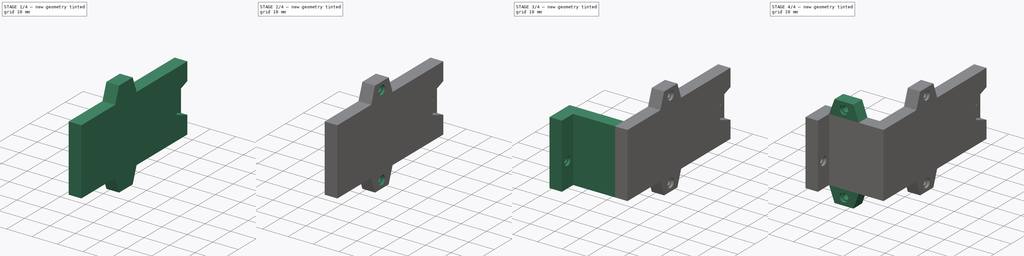
[diagram: build sequence overview — one tinted view per stage of 4, left to right]
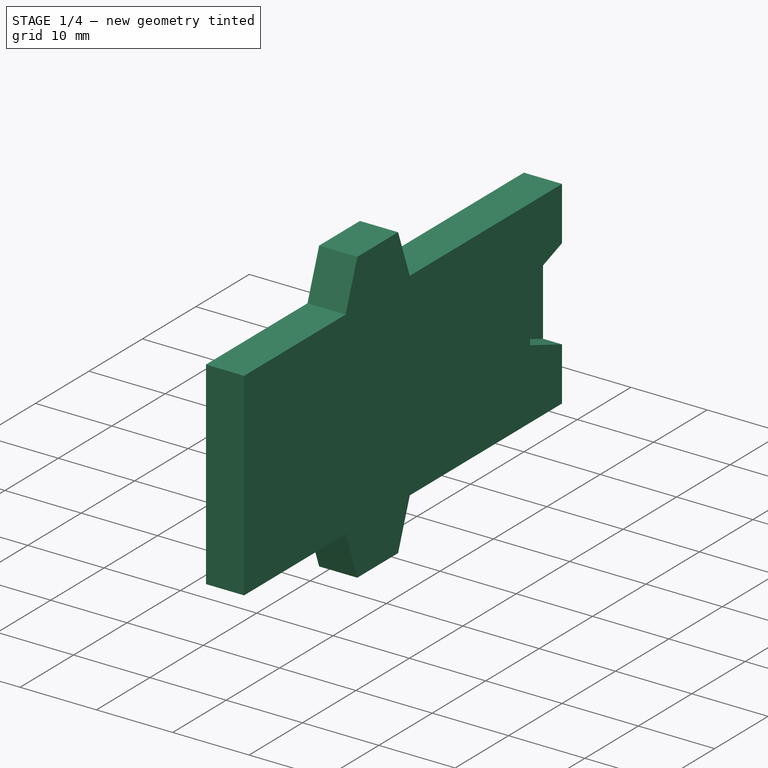
[diagram: stage 1 of 4 — iso view after this stage's code; geometry added in this stage tinted green]
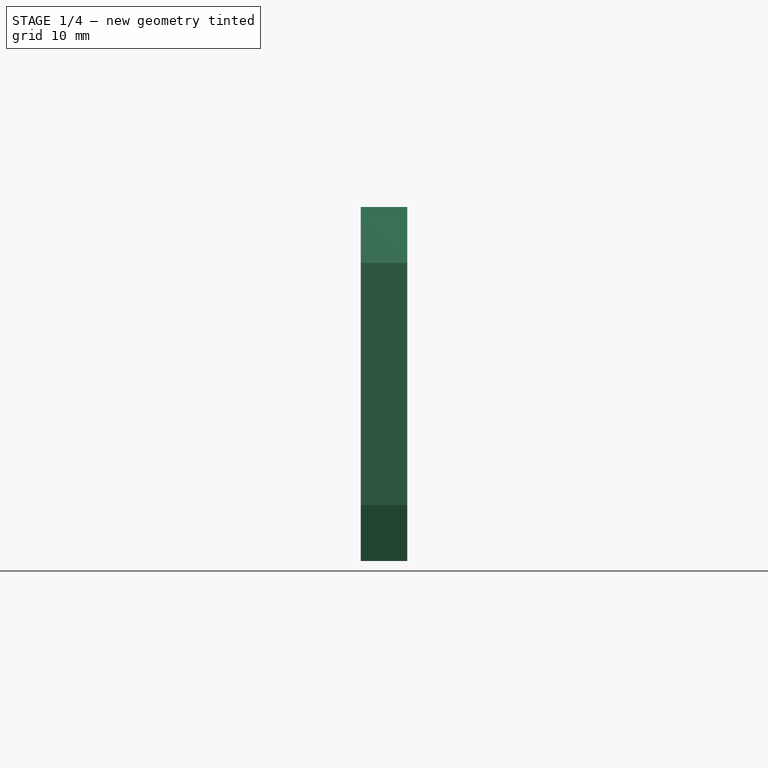
[diagram: stage 1 of 4 — front view after this stage's code; geometry added in this stage tinted green]
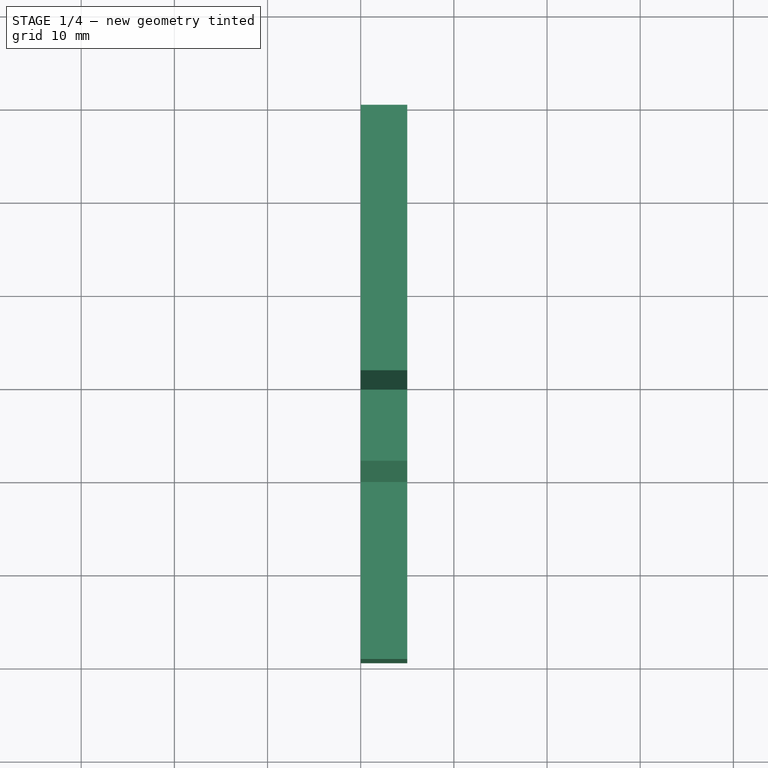
[diagram: stage 1 of 4 — top view after this stage's code; geometry added in this stage tinted green]
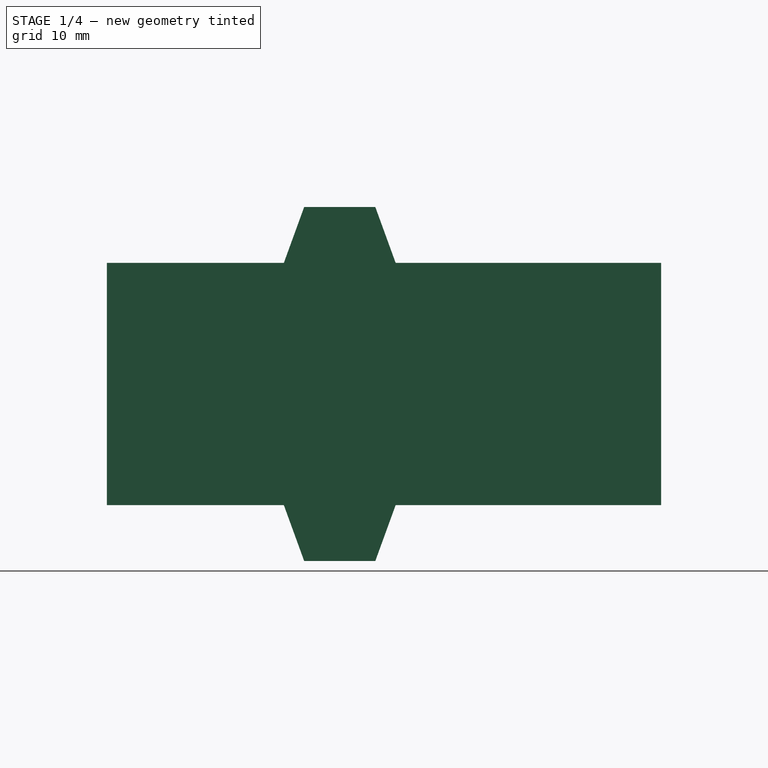
[diagram: stage 1 of 4 — right view after this stage's code; geometry added in this stage tinted green]
FCSTD DOCUMENT  (FreeCAD 0.22R38334 (Git))
Label: CH004
License: All rights reserved
LicenseURL: http://en.wikipedia.org/wiki/All_rights_reserved
objects: Sketcher::SketchObject×10, PartDesign::Pad×4, PartDesign::Body×3, PartDesign::Hole×3, PartDesign::SubShapeBinder×2, PartDesign::Pocket×2, App::Part×1
note: 52 computed .brp shape members not serialized (recipe doc carries the construction recipe); baked Part::Feature solids carry a one-line shape summary decoded from their .brp

FEATURE [PartDesign::SubShapeBinder] Binder
  BindCopyOnChange = 0
  BindMode = 0
  ClaimChildren = false
  Context = -> Part004 [Body.Binder.]
  Fuse = false
  MakeFace = true
  OffsetFill = false
  OffsetIntersection = false
  OffsetJoinType = 0
  OffsetOpenResult = false
  PartialLoad = false
  Relative = true
  Support = -> [Body016[Sketch033.]]
  _Version = 2
FEATURE [PartDesign::SubShapeBinder] Binder001
  BindCopyOnChange = 0
  BindMode = 0
  ClaimChildren = false
  Context = -> Part004 [Body017.Binder001.]
  Fuse = false
  MakeFace = true
  OffsetFill = false
  OffsetIntersection = false
  OffsetJoinType = 0
  OffsetOpenResult = false
  PartialLoad = false
  Relative = true
  Support = -> [Body016[Sketch033.]]
  _Version = 2
FEATURE [Sketcher::SketchObject] Sketch
  AttachmentSupport = -> [YZ_Plane]
  ExternalGeometry = -> [Binder]
  FullyConstrained = true
  MakeInternals = false
  MapMode = 5
  Placement = pos=(0,0,0) rot=(0.57735,0.57735,0.57735;2.0944rad)
  sketch-geometry (13):
    g0: LineSegment StartX=-59.5 StartY=13 StartZ=0 EndX=-59.5 EndY=-13 EndZ=0
    g1: LineSegment StartX=-59.5 StartY=-13 StartZ=0 EndX=-40.5 EndY=-13 EndZ=0
    g2: LineSegment StartX=0 StartY=13 StartZ=0 EndX=-28.5 EndY=13 EndZ=0
    g3: LineSegment StartX=-40.5 StartY=13 StartZ=0 EndX=-38.3162 EndY=19 EndZ=0
    g4: LineSegment StartX=-38.3162 StartY=19 StartZ=0 EndX=-30.6838 EndY=19 EndZ=0
    g5: LineSegment StartX=-30.6838 StartY=19 StartZ=0 EndX=-28.5 EndY=13 EndZ=0
    g6: LineSegment StartX=-40.5 StartY=13 StartZ=0 EndX=-59.5 EndY=13 EndZ=0
    g7: LineSegment StartX=-40.5 StartY=-13 StartZ=0 EndX=-38.3162 EndY=-19 EndZ=0
    g8: LineSegment StartX=-38.3162 StartY=-19 StartZ=0 EndX=-30.6838 EndY=-19 EndZ=0
    g9: LineSegment StartX=-30.6838 StartY=-19 StartZ=0 EndX=-28.5 EndY=-13 EndZ=0
    g10: LineSegment StartX=-28.5 StartY=-13 StartZ=0 EndX=0 EndY=-13 EndZ=0
    g11: LineSegment StartX=-34.5 StartY=19 StartZ=0 EndX=-34.5 EndY=-19 EndZ=0
    g12: LineSegment StartX=0 StartY=-13 StartZ=0 EndX=0 EndY=13 EndZ=0
  constraints (37):
    c: Coincident(g0,g1)
    c: PointOnObject(g10,g-2)
    c: Horizontal(g1)
    c: PointOnObject(g2,g-2)
    c: Coincident(g6,g0)
    c: Horizontal(g2)
    c: Vertical(g0,g-3)
    c: PointOnObject(g3,g6)
    c: Coincident(g3,g4)
    c: Horizontal(g4)
    c: Coincident(g5,g4)
    c: Coincident(g2,g5)
    c: PointOnObject(g6,g3)
    c: DistanceX(g3,g2) = 12
    c: DistanceY(g3,g3) = 6
    c: Angle(g3,g4) = 1.91986
    c: Horizontal(g6)
    c: Coincident(g7,g8)
    c: Horizontal(g8)
    c: Coincident(g8,g9)
    c: PointOnObject(g9,g10)
    c: Coincident(g1,g7)
    c: PointOnObject(g10,g9)
    c: Vertical(g3,g1)
    c: Vertical(g9,g2)
    c: Symmetric(g4,g4,g11)
    c: Symmetric(g8,g8,g11)
    c: Vertical(g11)
    c: Horizontal(g10)
    c: Symmetric(g3,g2,g11)
    c: Symmetric(g0,g0,g-1)
    c: Horizontal(g1,g9)
    c: Symmetric(g7,g3,g-1)
    c: DistanceY(g0,g0) = 26
    c: DistanceX(g0,g3) = 19
    c: Coincident(g12,g10)
    c: Coincident(g12,g2)
FEATURE [PartDesign::Pad] Pad
  Direction = (1,0,0)
  Length = 5
  Length2 = 10
  Placement = pos=(0,0,0) rot=(1,1,1;2.0944rad)
  Profile = -> Sketch
  ReferenceAxis = -> Sketch [N_Axis]
  Suppressed = false
  Type = 0
FEATURE [PartDesign::Body] Body017  label="CH002"
  AllowCompound = false
  Group = -> [Binder001,Sketch036,Pad001,Sketch037,Pad002,Sketch039,Hole001,Sketch040,Pad003,Sketch041,Hole002]
  Origin = -> Origin022
  Tip = -> Hole002
FEATURE [Sketcher::SketchObject] Sketch042
  AttachmentSupport = -> [Pad]
  ExternalGeometry = -> [Pad]
  FullyConstrained = true
  MakeInternals = false
  MapMode = 5
  Placement = pos=(5,-1.1e-15,6e-16) rot=(0.57735,0.57735,0.57735;2.0944rad)
  sketch-geometry (4):
    g0: LineSegment StartX=7e-16 StartY=6 StartZ=0 EndX=-6 EndY=3.81618 EndZ=0
    g1: LineSegment StartX=-6 StartY=3.81618 StartZ=0 EndX=-6 EndY=-3.81618 EndZ=0
    g2: LineSegment StartX=-6 StartY=-3.81618 StartZ=0 EndX=9e-16 EndY=-6 EndZ=0
    g3: LineSegment StartX=9e-16 StartY=-6 StartZ=0 EndX=7e-16 EndY=6 EndZ=0
  constraints (10):
    c: PointOnObject(g0,g-3)
    c: Coincident(g0,g1)
    c: Coincident(g1,g2)
    c: Coincident(g2,g3)
    c: Coincident(g3,g0)
    c: Symmetric(g0,g1,g-1)
    c: DistanceX(g0,g0) = 6
    c: Angle(g2,g1) = 1.91986
    c: DistanceY(g3,g3) = 12
    c: Symmetric(g2,g0,g-1)
FEATURE [PartDesign::Pocket] Pocket
  BaseFeature = -> Pad
  Direction = (-1,0,0)
  Length = 2.5
  Length2 = 5
  Placement = pos=(0,0,0) rot=(1,1,1;2.0944rad)
  Profile = -> Sketch042
  ReferenceAxis = -> Sketch042 [N_Axis]
  Suppressed = false
  Type = 0
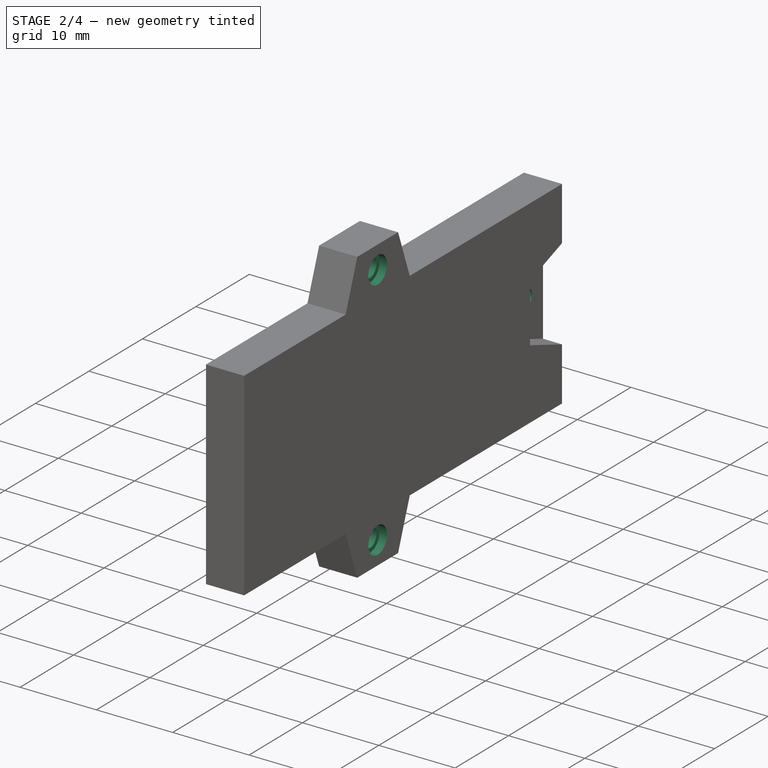
[diagram: stage 2 of 4 — iso view after this stage's code; geometry added in this stage tinted green]
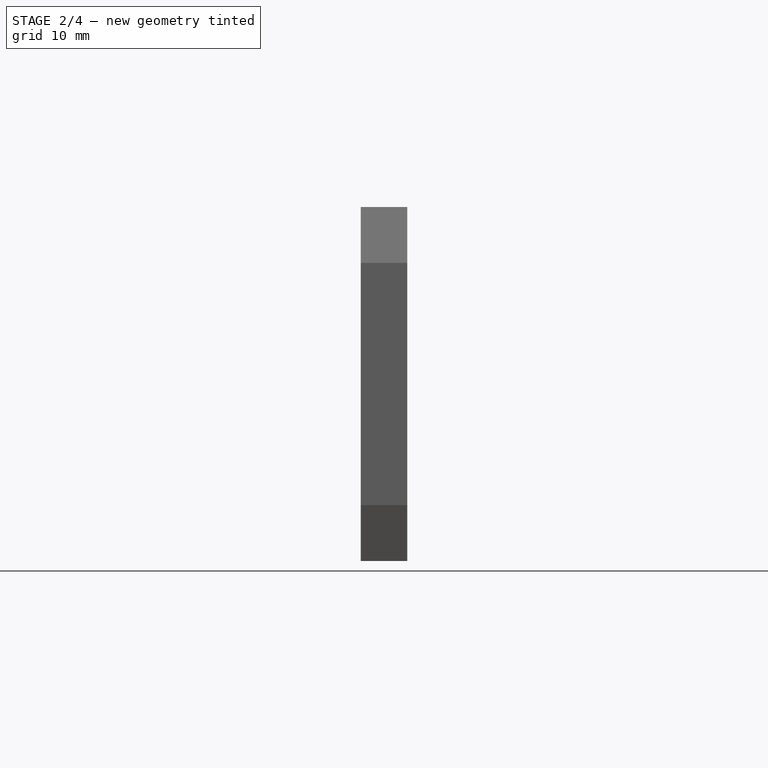
[diagram: stage 2 of 4 — front view after this stage's code; geometry added in this stage tinted green]
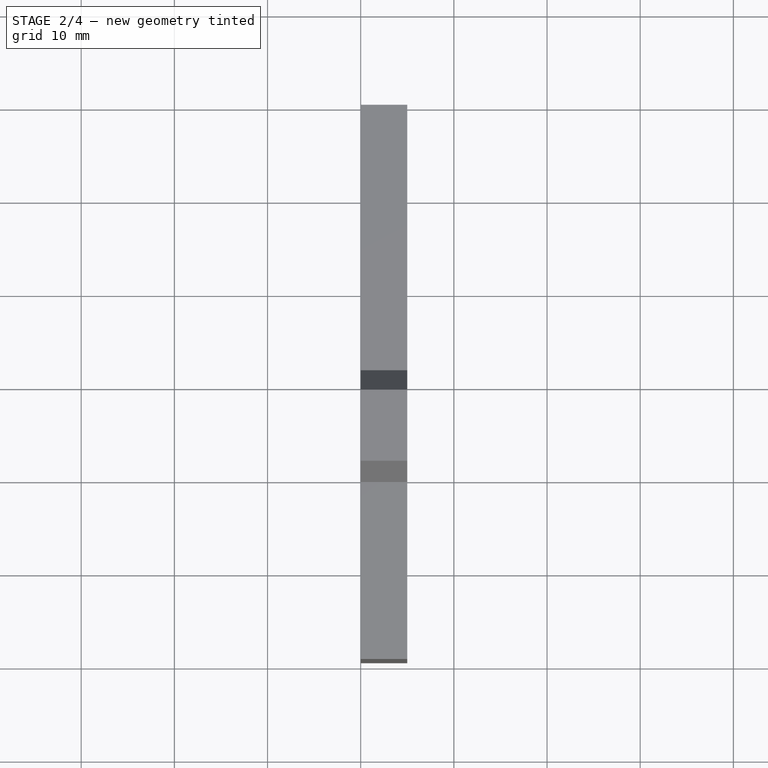
[diagram: stage 2 of 4 — top view after this stage's code; geometry added in this stage tinted green]
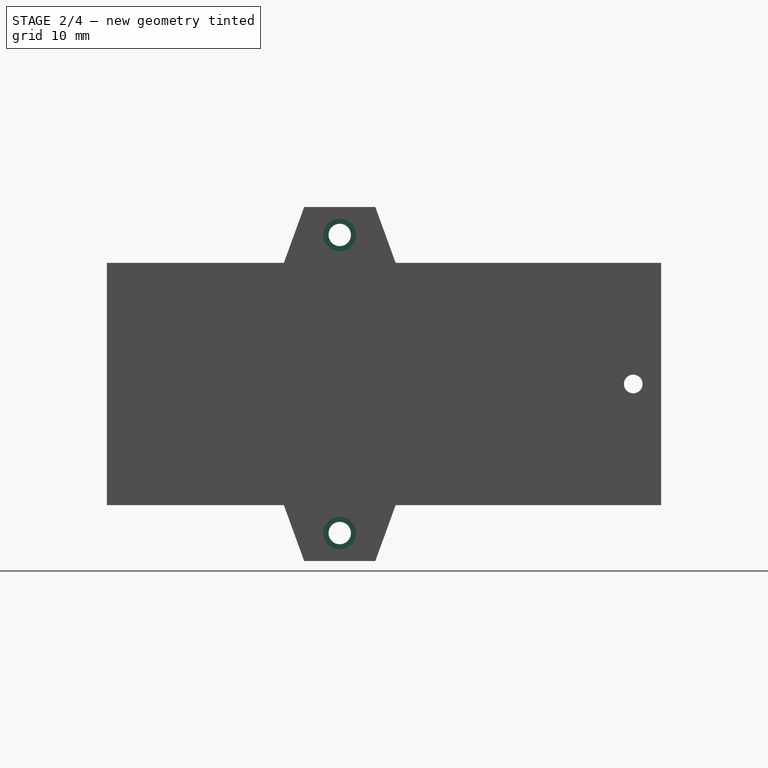
[diagram: stage 2 of 4 — right view after this stage's code; geometry added in this stage tinted green]
FEATURE [Sketcher::SketchObject] Sketch043
  AttachmentSupport = -> [Pad]
  ExternalGeometry = -> [Pad]
  FullyConstrained = true
  MakeInternals = false
  MapMode = 5
  Placement = pos=(5,-1.1e-15,6e-16) rot=(0.57735,0.57735,0.57735;2.0944rad)
  sketch-geometry (5):
    g0: LineSegment StartX=-34.5 StartY=19 StartZ=0 EndX=-34.5 EndY=-19 EndZ=0
    g1: Circle CenterX=-34.5 CenterY=16 CenterZ=0 NormalX=0 NormalY=0 NormalZ=1 AngleXU=0 Radius=1
    g2: Circle CenterX=-34.5 CenterY=-16 CenterZ=0 NormalX=0 NormalY=0 NormalZ=1 AngleXU=0 Radius=1
    g3: GeomPoint X=-34.5 Y=13 Z=0
    g4: GeomPoint X=-34.5 Y=-13 Z=0
  constraints (11):
    c: PointOnObject(g0,g-3)
    c: Symmetric(g-4,g-4,g0)
    c: Vertical(g0)
    c: PointOnObject(g1,g0)
    c: PointOnObject(g2,g0)
    c: Equal(g2,g1)
    c: Horizontal(g4,g-6)
    c: Horizontal(g-5,g3)
    c: Symmetric(g0,g3,g1)
    c: Diameter(g1) = 2
    c: Symmetric(g4,g0,g2)
FEATURE [PartDesign::Hole] Hole
  BaseFeature = -> Pocket
  CustomThreadClearance = 0
  Depth = 25
  DepthType = 0
  Diameter = 2.4
  DrillForDepth = false
  DrillPoint = 1
  DrillPointAngle = 118
  HoleCutCountersinkAngle = 90
  HoleCutCustomValues = false
  HoleCutDepth = 1
  HoleCutDiameter = 3.5
  HoleCutType = 1
  ModelThread = false
  Placement = pos=(0,0,0) rot=(1,1,1;2.0944rad)
  Profile = -> Sketch043
  Suppressed = false
  Tapered = false
  TaperedAngle = 90
  ThreadClass = 0
  ThreadDepth = 25
  ThreadDepthType = 0
  ThreadDirection = 0
  ThreadFit = 0
  ThreadSize = 6
  ThreadType = 1
  Threaded = false
  UseCustomThreadClearance = false
  expr: HoleCutDepth = 1
  expr: HoleCutDiameter = 3.5
FEATURE [Sketcher::SketchObject] Sketch044
  AttachmentSupport = -> [Hole]
  ExternalGeometry = -> [Hole]
  FullyConstrained = true
  MakeInternals = false
  MapMode = 5
  Placement = pos=(2.5,-1.1e-15,6e-16) rot=(0.57735,0.57735,0.57735;2.0944rad)
  sketch-geometry (2):
    g0: Circle CenterX=-3 CenterY=2.4e-15 CenterZ=0 NormalX=0 NormalY=0 NormalZ=1 AngleXU=0 Radius=1
    g1: LineSegment StartX=-6 StartY=4.9e-15 StartZ=0 EndX=0 EndY=0 EndZ=0
  constraints (4):
    c: Symmetric(g-3,g-3,g1)
    c: Symmetric(g1,g1,g0)
    c: Diameter(g0) = 2
    c: Coincident(g1,g-1)
FEATURE [PartDesign::Pocket] Pocket001
  BaseFeature = -> Hole
  Direction = (-1,0,0)
  Length = 5
  Length2 = 5
  Placement = pos=(0,0,0) rot=(1,1,1;2.0944rad)
  Profile = -> Sketch044
  ReferenceAxis = -> Sketch044 [N_Axis]
  Suppressed = false
  Type = 0
FEATURE [PartDesign::Body] Body  label="CH001"
  AllowCompound = false
  Group = -> [Binder,Sketch,Pad,Sketch042,Pocket,Sketch043,Hole,Sketch044,Pocket001]
  Origin = -> Origin
  Tip = -> Pocket001
FEATURE [App::Part] Part004  label="CH004_"
  Group = -> [Body016,Body,Body017]
  Origin = -> Origin020
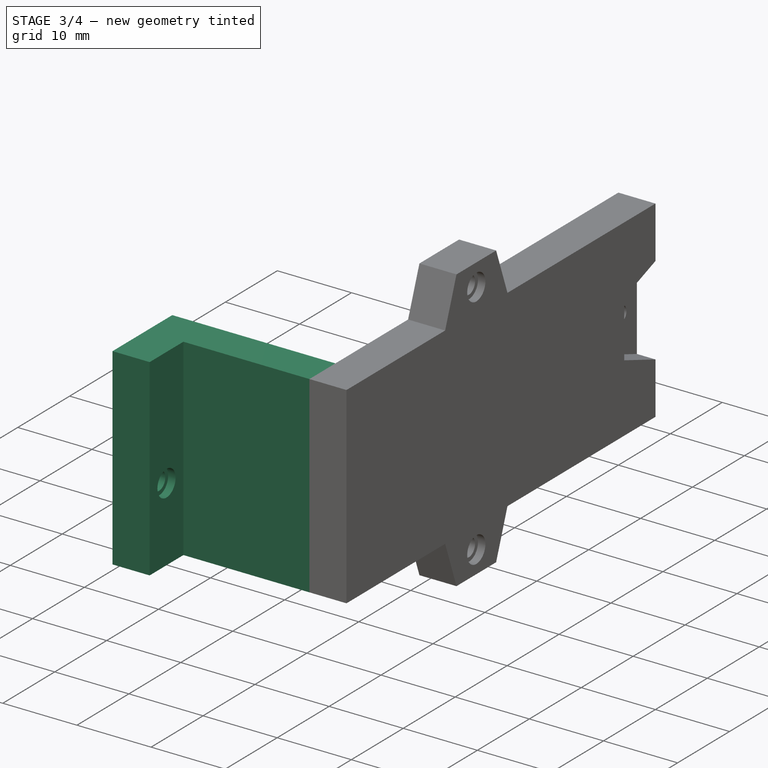
[diagram: stage 3 of 4 — iso view after this stage's code; geometry added in this stage tinted green]
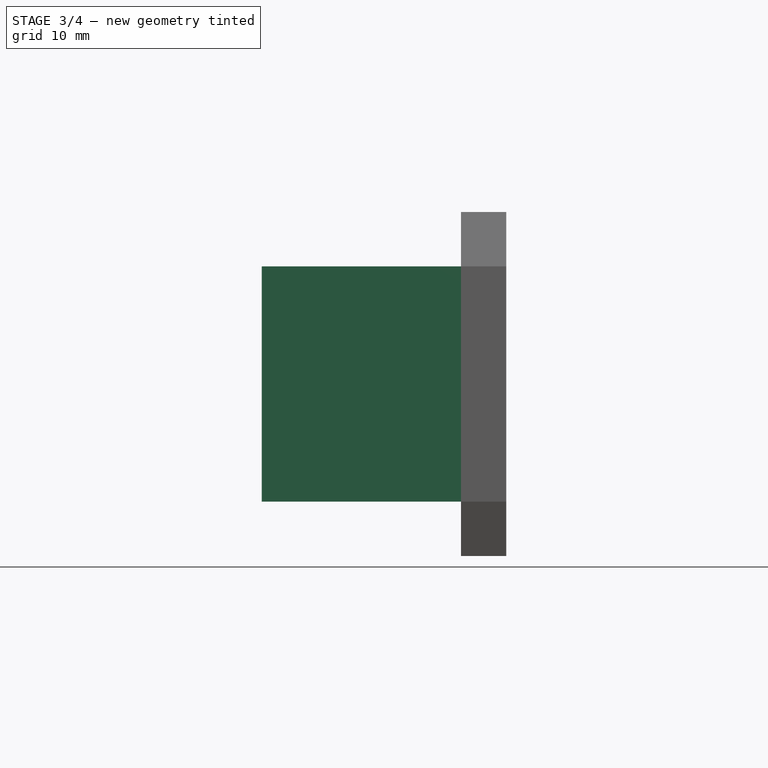
[diagram: stage 3 of 4 — front view after this stage's code; geometry added in this stage tinted green]
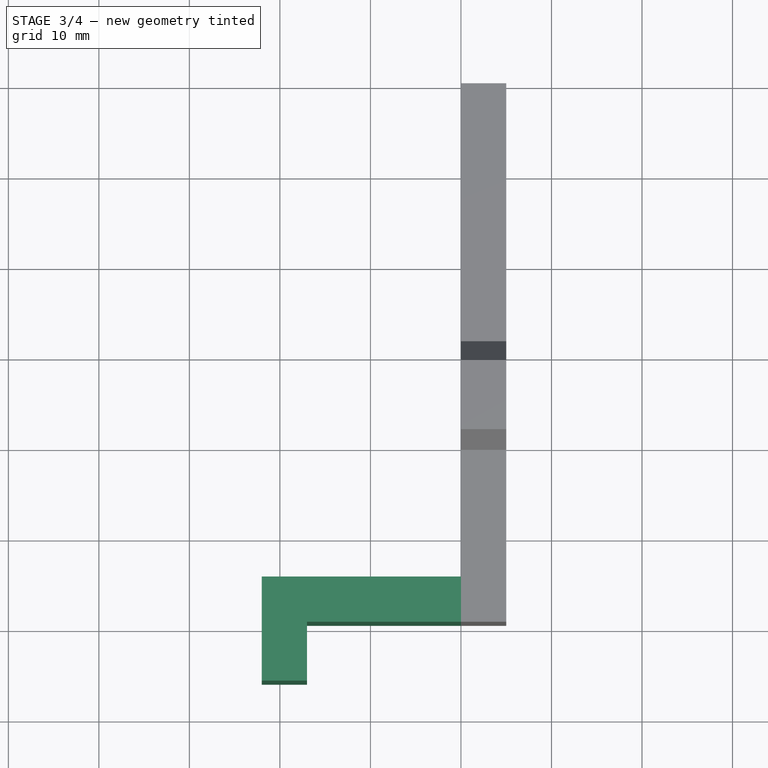
[diagram: stage 3 of 4 — top view after this stage's code; geometry added in this stage tinted green]
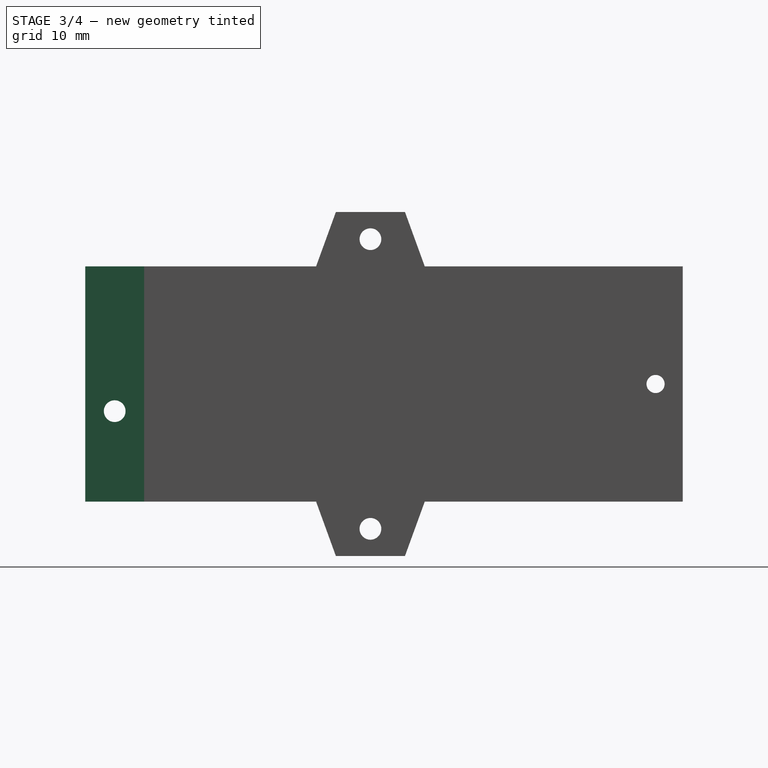
[diagram: stage 3 of 4 — right view after this stage's code; geometry added in this stage tinted green]
FEATURE [Sketcher::SketchObject] Sketch033
  AttachmentSupport = -> [XY_Plane021]
  FullyConstrained = true
  MakeInternals = false
  MapMode = 5
  expr: Constraints[10] = 215 - 48 * 2
  sketch-geometry (5):
    g0: LineSegment StartX=-32 StartY=-59.5 StartZ=0 EndX=32 EndY=-59.5 EndZ=0
    g1: LineSegment StartX=32 StartY=-59.5 StartZ=0 EndX=32 EndY=59.5 EndZ=0
    g2: LineSegment StartX=32 StartY=59.5 StartZ=0 EndX=-32 EndY=59.5 EndZ=0
    g3: LineSegment StartX=-32 StartY=59.5 StartZ=0 EndX=-32 EndY=-59.5 EndZ=0
    g4: GeomPoint X=0 Y=0 Z=0
  constraints (12):
    c: Coincident(g0,g1)
    c: Coincident(g1,g2)
    c: Coincident(g2,g3)
    c: Coincident(g3,g0)
    c: Horizontal(g0)
    c: Horizontal(g2)
    c: Vertical(g1)
    c: Vertical(g3)
    c: Symmetric(g2,g0,g4)
    c: Coincident(g4,g-1)
    c: DistanceY(g1,g1) = 119
    c: DistanceX(g2,g2) = 64
FEATURE [PartDesign::Body] Body016  label="Master004"
  AllowCompound = false
  Group = -> [Sketch033]
  Origin = -> Origin021
FEATURE [Sketcher::SketchObject] Sketch036
  AttachmentSupport = -> [YZ_Plane022]
  ExternalGeometry = -> [Binder001]
  FullyConstrained = true
  MakeInternals = false
  MapMode = 5
  Placement = pos=(0,0,0) rot=(0.57735,0.57735,0.57735;2.0944rad)
  sketch-geometry (4):
    g0: LineSegment StartX=-59.5 StartY=13 StartZ=0 EndX=-59.5 EndY=-13 EndZ=0
    g1: LineSegment StartX=-59.5 StartY=-13 StartZ=0 EndX=-54.5 EndY=-13 EndZ=0
    g2: LineSegment StartX=-54.5 StartY=-13 StartZ=0 EndX=-54.5 EndY=13 EndZ=0
    g3: LineSegment StartX=-54.5 StartY=13 StartZ=0 EndX=-59.5 EndY=13 EndZ=0
  constraints (11):
    c: Coincident(g0,g1)
    c: Coincident(g1,g2)
    c: Coincident(g2,g3)
    c: Coincident(g3,g0)
    c: Vertical(g2)
    c: Horizontal(g3)
    c: Horizontal(g1)
    c: Vertical(g0,g-3)
    c: DistanceX(g3,g3) = 5
    c: DistanceY(g0,g0) = 26
    c: Symmetric(g0,g0,g-1)
FEATURE [PartDesign::Pad] Pad001
  Direction = (1,0,0)
  Length = 22
  Length2 = 10
  Placement = pos=(0,0,0) rot=(1,1,1;2.0944rad)
  Profile = -> Sketch036
  ReferenceAxis = -> Sketch036 [N_Axis]
  Reversed = true
  Suppressed = false
  Type = 0
FEATURE [Sketcher::SketchObject] Sketch037
  AttachmentSupport = -> [Pad001]
  ExternalGeometry = -> [Pad001]
  FullyConstrained = true
  MakeInternals = false
  MapMode = 5
  Placement = pos=(-1.32e-14,-59.5,6.6e-15) rot=(0.57735,0.57735,-0.57735;2.0944rad)
  sketch-geometry (4):
    g0: LineSegment StartX=-13 StartY=-17 StartZ=0 EndX=-13 EndY=-22 EndZ=0
    g1: LineSegment StartX=-13 StartY=-22 StartZ=0 EndX=13 EndY=-22 EndZ=0
    g2: LineSegment StartX=13 StartY=-22 StartZ=0 EndX=13 EndY=-17 EndZ=0
    g3: LineSegment StartX=13 StartY=-17 StartZ=0 EndX=-13 EndY=-17 EndZ=0
  constraints (11):
    c: Coincident(g0,g1)
    c: Coincident(g1,g2)
    c: Coincident(g2,g3)
    c: Coincident(g3,g0)
    c: Vertical(g0)
    c: Vertical(g2)
    c: Horizontal(g1)
    c: Horizontal(g3)
    c: Coincident(g1,g-4)
    c: DistanceX(g3,g3) = 26
    c: DistanceY(g0,g0) = 5
FEATURE [PartDesign::Pad] Pad002
  BaseFeature = -> Pad001
  Direction = (0,-1,0)
  Length = 6.5
  Length2 = 10
  Placement = pos=(0,0,0) rot=(1,1,1;2.0944rad)
  Profile = -> Sketch037
  ReferenceAxis = -> Sketch037 [N_Axis]
  Suppressed = false
  Type = 0
FEATURE [Sketcher::SketchObject] Sketch039
  AttachmentSupport = -> [Pad002]
  ExternalGeometry = -> [Pad002]
  FullyConstrained = true
  MakeInternals = false
  MapMode = 5
  Placement = pos=(-17,0,-5.7e-15) rot=(0.57735,0.57735,0.57735;2.0944rad)
  sketch-geometry (2):
    g0: LineSegment StartX=-62.75 StartY=13 StartZ=0 EndX=-62.75 EndY=-13 EndZ=0
    g1: Circle CenterX=-62.75 CenterY=-3 CenterZ=0 NormalX=0 NormalY=0 NormalZ=1 AngleXU=0 Radius=1
  constraints (5):
    c: PointOnObject(g1,g0)
    c: Diameter(g1) = 2
    c: Symmetric(g-5,g-5,g0)
    c: Symmetric(g-6,g-6,g0)
    c: Distance(g1,g-6) = 10
FEATURE [PartDesign::Hole] Hole001
  BaseFeature = -> Pad002
  CustomThreadClearance = 0
  Depth = 25
  DepthType = 0
  Diameter = 2.4
  DrillForDepth = false
  DrillPoint = 1
  DrillPointAngle = 118
  HoleCutCountersinkAngle = 90
  HoleCutCustomValues = false
  HoleCutDepth = 1
  HoleCutDiameter = 3.5
  HoleCutType = 1
  ModelThread = false
  Placement = pos=(0,0,0) rot=(1,1,1;2.0944rad)
  Profile = -> Sketch039
  Suppressed = false
  Tapered = false
  TaperedAngle = 90
  ThreadClass = 0
  ThreadDepth = 25
  ThreadDepthType = 0
  ThreadDirection = 0
  ThreadFit = 0
  ThreadSize = 6
  ThreadType = 1
  Threaded = false
  UseCustomThreadClearance = false
  expr: HoleCutDiameter = 3.5
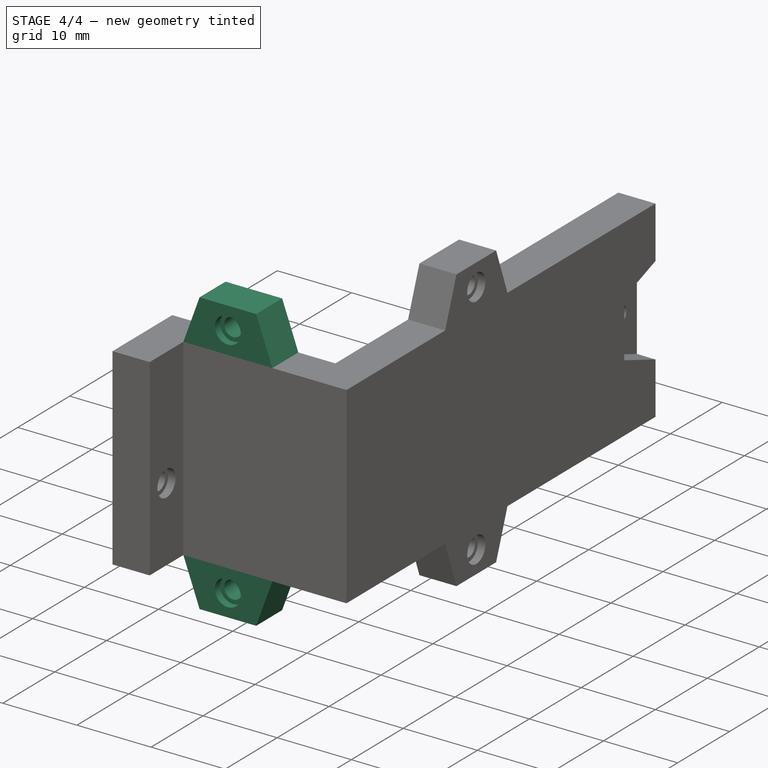
[diagram: stage 4 of 4 — iso view after this stage's code; geometry added in this stage tinted green]
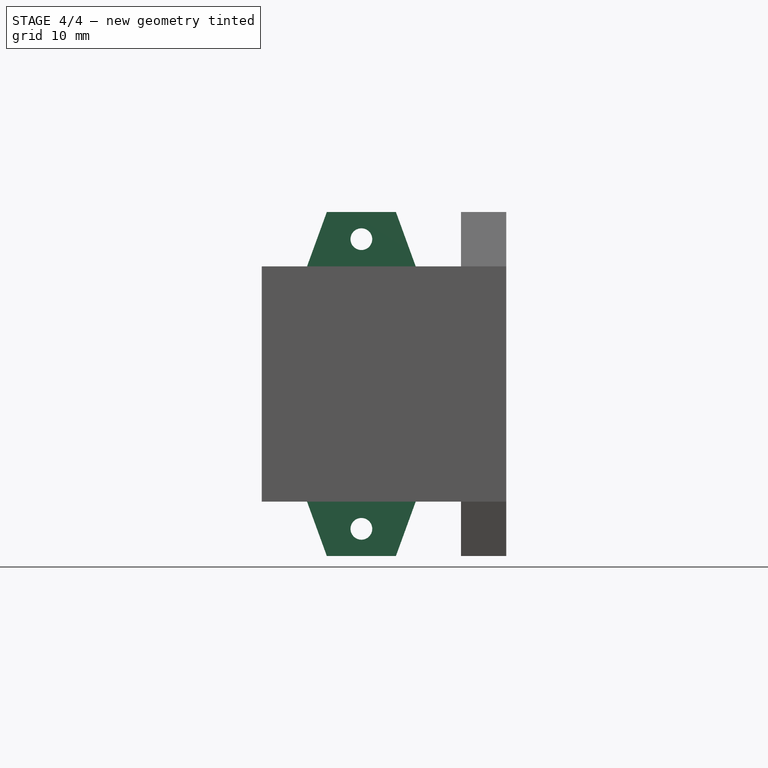
[diagram: stage 4 of 4 — front view after this stage's code; geometry added in this stage tinted green]
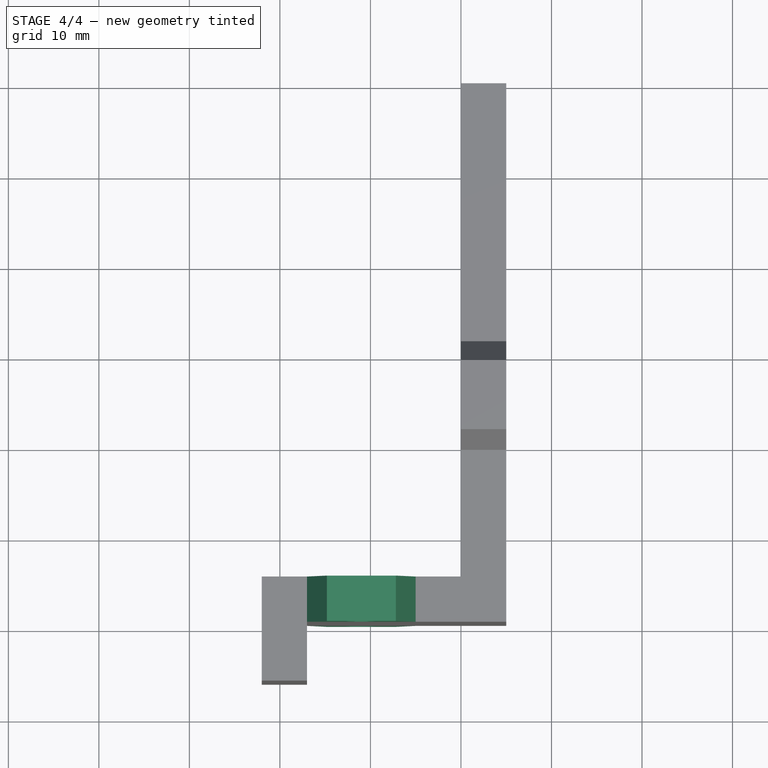
[diagram: stage 4 of 4 — top view after this stage's code; geometry added in this stage tinted green]
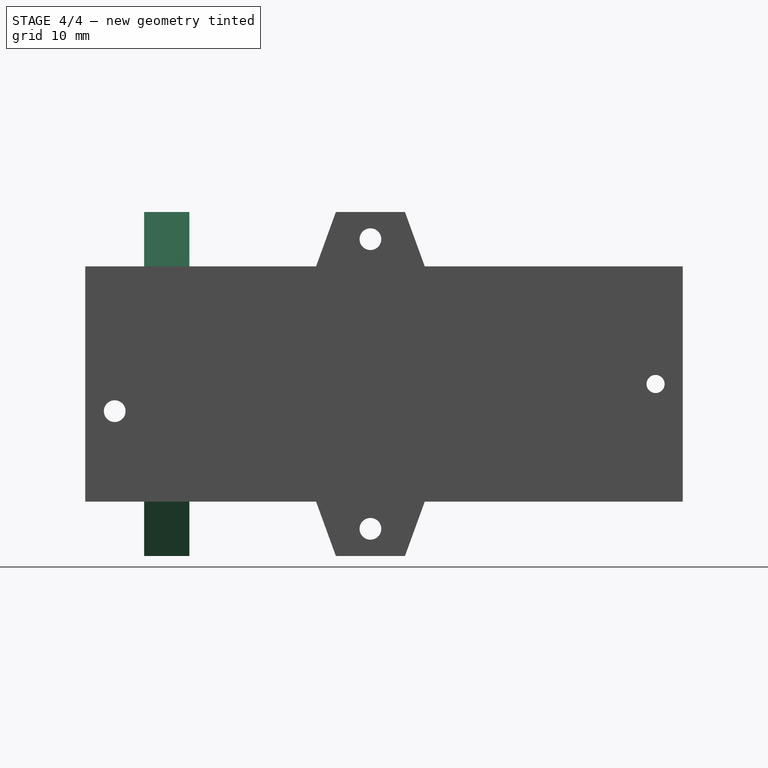
[diagram: stage 4 of 4 — right view after this stage's code; geometry added in this stage tinted green]
FEATURE [Sketcher::SketchObject] Sketch040
  AttachmentSupport = -> [Pad001]
  ExternalGeometry = -> [Pad001]
  FullyConstrained = true
  MakeInternals = false
  MapMode = 5
  Placement = pos=(-1.32e-14,-59.5,6.6e-15) rot=(0.57735,0.57735,-0.57735;2.0944rad)
  sketch-geometry (10):
    g0: LineSegment StartX=13 StartY=-17 StartZ=0 EndX=19 EndY=-14.8162 EndZ=0
    g1: LineSegment StartX=19 StartY=-14.8162 StartZ=0 EndX=19 EndY=-7.18382 EndZ=0
    g2: LineSegment StartX=19 StartY=-7.18382 StartZ=0 EndX=13 EndY=-5 EndZ=0
    g3: LineSegment StartX=13 StartY=-5 StartZ=0 EndX=13 EndY=-17 EndZ=0
    g4: LineSegment StartX=13 StartY=-11 StartZ=0 EndX=19 EndY=-11 EndZ=0
    g5: LineSegment StartX=-13 StartY=-17 StartZ=0 EndX=-19 EndY=-14.8162 EndZ=0
    g6: LineSegment StartX=-19 StartY=-14.8162 StartZ=0 EndX=-19 EndY=-7.18382 EndZ=0
    g7: LineSegment StartX=-19 StartY=-7.18382 StartZ=0 EndX=-13 EndY=-5 EndZ=0
    g8: LineSegment StartX=-13 StartY=-5 StartZ=0 EndX=-13 EndY=-17 EndZ=0
    g9: LineSegment StartX=-13 StartY=-11 StartZ=0 EndX=-19 EndY=-11 EndZ=0
  constraints (28):
    c: PointOnObject(g0,g-3)
    c: Coincident(g0,g1)
    c: Vertical(g1)
    c: Coincident(g1,g2)
    c: PointOnObject(g2,g-3)
    c: Coincident(g2,g3)
    c: Coincident(g3,g0)
    c: Symmetric(g3,g3,g4)
    c: Horizontal(g4)
    c: Distance(g1,g3) = 6
    c: DistanceY(g3,g3) = 12
    c: Angle(g1,g0) = 1.91986
    c: Symmetric(g1,g1,g4)
    c: DistanceY(g2,g-3) = 5
    c: Coincident(g5,g6)
    c: Vertical(g6)
    c: Coincident(g6,g7)
    c: Coincident(g7,g8)
    c: Coincident(g8,g5)
    c: Symmetric(g8,g8,g9)
    c: Horizontal(g9)
    c: Distance(g6,g8) = 6
    c: Angle(g6,g5) = -1.91986
    c: Symmetric(g6,g6,g9)
    c: DistanceY(g7,g-5) = 5
    c: PointOnObject(g7,g-5)
    c: PointOnObject(g5,g-5)
    c: DistanceY(g8,g8) = 12
FEATURE [PartDesign::Pad] Pad003
  BaseFeature = -> Hole001
  Direction = (0,-1,0)
  Length = 5
  Length2 = 10
  Placement = pos=(0,0,0) rot=(1,1,1;2.0944rad)
  Profile = -> Sketch040
  ReferenceAxis = -> Sketch040 [N_Axis]
  Reversed = true
  Suppressed = false
  Type = 0
FEATURE [Sketcher::SketchObject] Sketch041
  AttachmentSupport = -> [Pad003]
  ExternalGeometry = -> [Pad003]
  FullyConstrained = true
  MakeInternals = false
  MapMode = 5
  Placement = pos=(0,-59.5,1.98e-14) rot=(0.57735,0.57735,-0.57735;2.0944rad)
  sketch-geometry (4):
    g0: LineSegment StartX=19 StartY=-11 StartZ=0 EndX=13 EndY=-11 EndZ=0
    g1: Circle CenterX=16 CenterY=-11 CenterZ=0 NormalX=0 NormalY=0 NormalZ=1 AngleXU=0 Radius=1
    g2: LineSegment StartX=-19 StartY=-11 StartZ=0 EndX=-13 EndY=-11 EndZ=0
    g3: Circle CenterX=-16 CenterY=-11 CenterZ=0 NormalX=0 NormalY=0 NormalZ=1 AngleXU=0 Radius=1
  constraints (8):
    c: Symmetric(g-3,g-3,g0)
    c: Symmetric(g-4,g-4,g0)
    c: Symmetric(g0,g0,g1)
    c: Diameter(g1) = 2
    c: Symmetric(g-6,g-6,g2)
    c: Symmetric(g-5,g-5,g2)
    c: Equal(g3,g1)
    c: Symmetric(g2,g2,g3)
FEATURE [PartDesign::Hole] Hole002
  BaseFeature = -> Pad003
  CustomThreadClearance = 0
  Depth = 25
  DepthType = 0
  Diameter = 2.4
  DrillForDepth = false
  DrillPoint = 1
  DrillPointAngle = 118
  HoleCutCountersinkAngle = 90
  HoleCutCustomValues = false
  HoleCutDepth = 1
  HoleCutDiameter = 3.5
  HoleCutType = 1
  ModelThread = false
  Placement = pos=(0,0,0) rot=(1,1,1;2.0944rad)
  Profile = -> Sketch041
  Suppressed = false
  Tapered = false
  TaperedAngle = 90
  ThreadClass = 0
  ThreadDepth = 25
  ThreadDepthType = 0
  ThreadDirection = 0
  ThreadFit = 0
  ThreadSize = 6
  ThreadType = 1
  Threaded = false
  UseCustomThreadClearance = false
  expr: HoleCutDepth = 1
  expr: HoleCutDiameter = 3.5
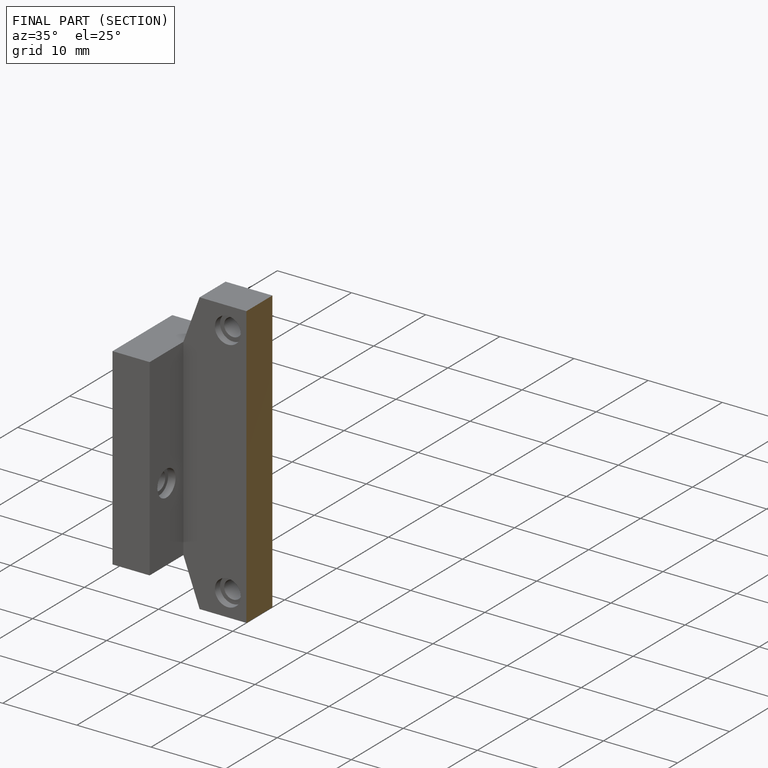
[diagram: finished part — half-section view (interior)]
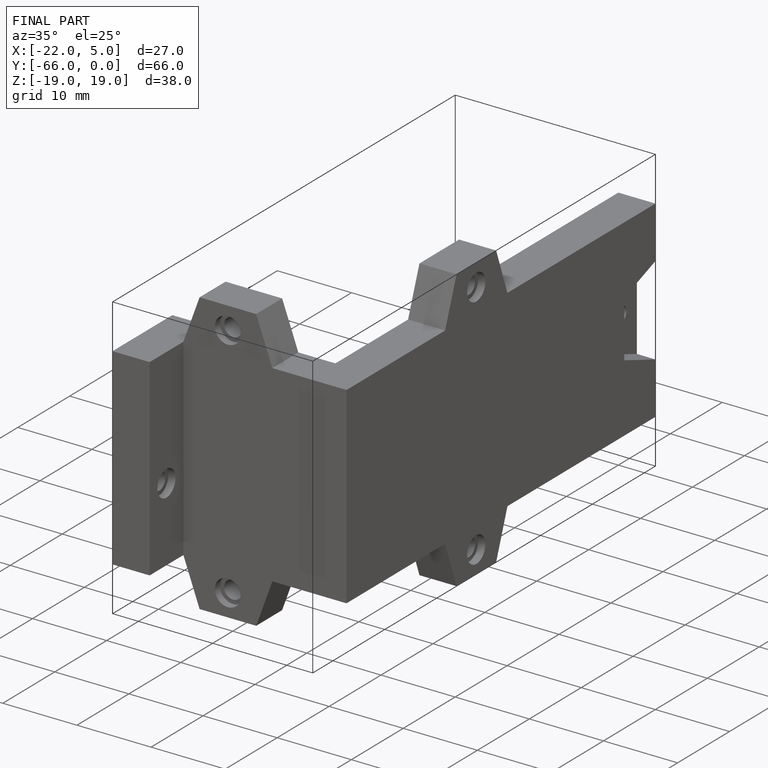
[diagram: finished part — iso view with bounding-box wireframe]
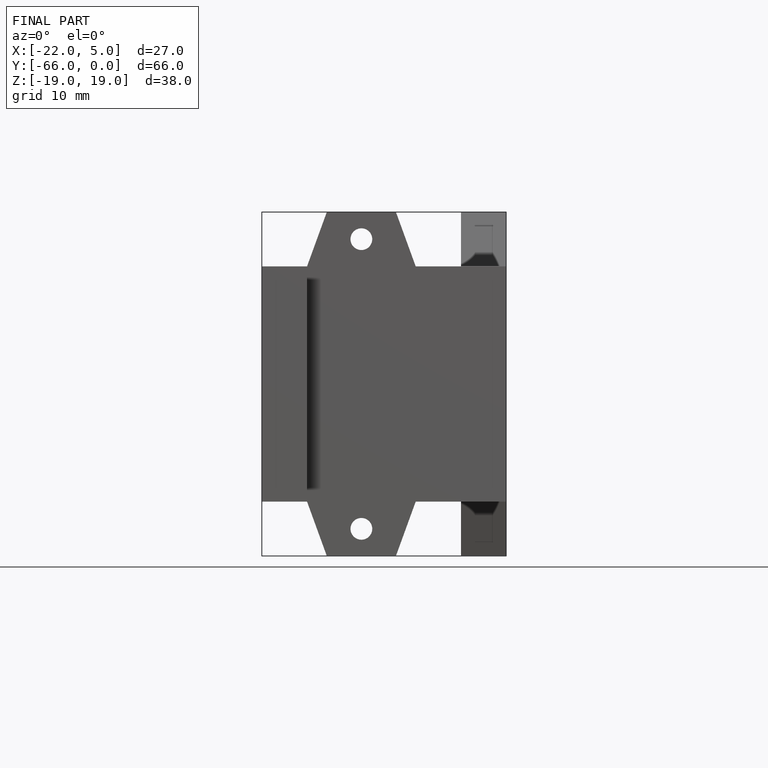
[diagram: finished part — front view with bounding-box wireframe]
